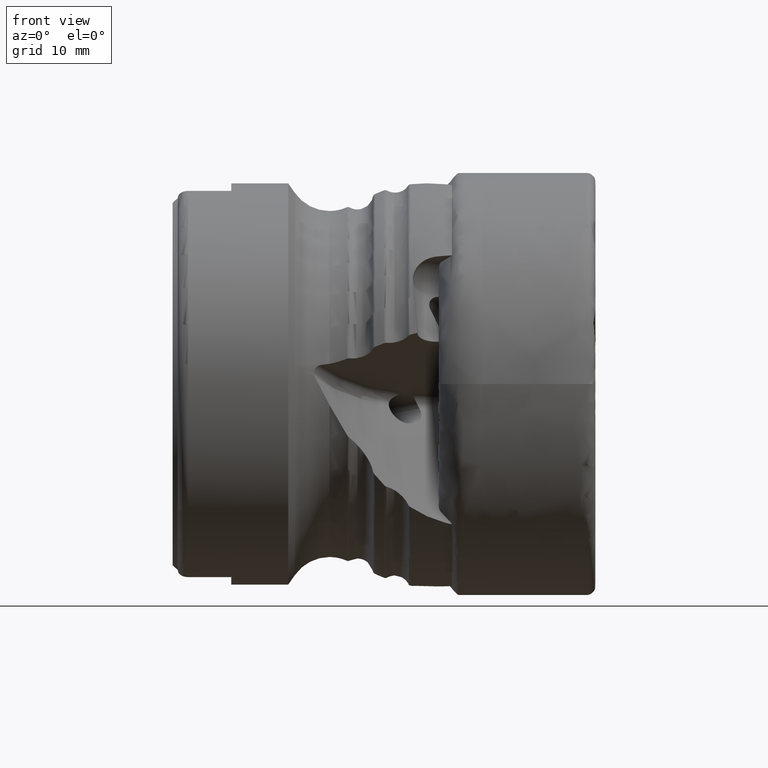
[diagram: clean part render]
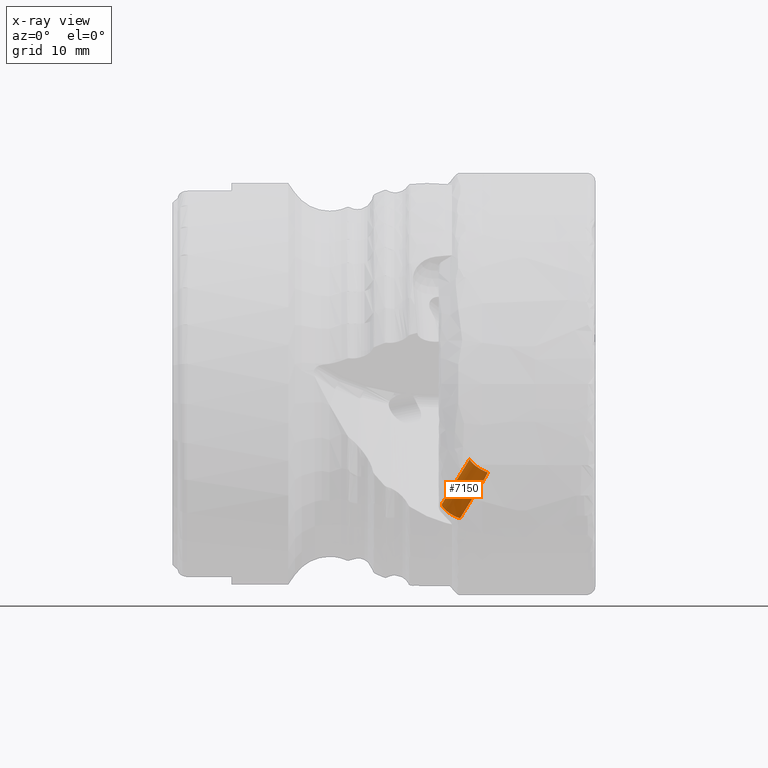
[diagram: x-ray — body ghosted, one internal face saturated and labeled with its STEP entity id]
A machine part, front view, then the same camera in x-ray: the body is ghosted and one INTERNAL B-rep face — a face not visible from any outside direction — is saturated and labeled: STEP entity #7150.
In plain terms, the highlighted cylindrical surface (edge-blend (fillet) strip) has radius 1.25 mm, axis along (-0.5057, 0.2785, -0.8165).
Its self-contained STEP definition (entity closure, byte-faithful):
#218 = CARTESIAN_POINT ( 'NONE',  ( -9.642172371613241900, -2.052300005719996300, -8.959324950347999900 ) ) ;
#690 = EDGE_CURVE ( 'NONE', #7364, #10941, #9029, .T. ) ;
#807 = EDGE_CURVE ( 'NONE', #5479, #6560, #8882, .T. ) ;
#1838 = CARTESIAN_POINT ( 'NONE',  ( -9.957127946149158900, -1.433126351175724000, -7.715148156586241000 ) ) ;
#2467 = CARTESIAN_POINT ( 'NONE',  ( -13.26944139812054700, 0.3913321303669727300, -13.06327220572874000 ) ) ;
#2474 = AXIS2_PLACEMENT_3D ( 'NONE', #2467, #11038, #7258 ) ;
#3349 = B_SPLINE_CURVE_WITH_KNOTS ( 'NONE', 3,
 ( #3754, #3671, #10437, #8694, #4827, #10480 ),
 .UNSPECIFIED., .F., .F.,
 ( 4, 2, 4 ),
 ( 2.602085213965210600E-018, 0.0003447808417564084300, 0.0006895616835128142700 ),
 .UNSPECIFIED. ) ;
#3467 = ORIENTED_EDGE ( 'NONE', *, *, #690, .F. ) ;
#3607 = DIRECTION ( 'NONE',  ( -0.5056967102246390200, 0.2785432796248390500, -0.8165074884187016900 ) ) ;
#3623 = DIRECTION ( 'NONE',  ( -0.8501534344395673700, 0.0000000000000000000, 0.5265350300887949900 ) ) ;
#3671 = CARTESIAN_POINT ( 'NONE',  ( -9.592598803239042100, -2.092707367843393800, -8.863807936376899100 ) ) ;
#3754 = CARTESIAN_POINT ( 'NONE',  ( -9.642172371613241900, -2.052300005719996300, -8.959324950347999900 ) ) ;
#4779 = CYLINDRICAL_SURFACE ( 'NONE', #2474, 1.250000000000001300 ) ;
#4813 = CARTESIAN_POINT ( 'NONE',  ( -11.97639707735323500, -0.7665835045600043500, -12.72820838058033700 ) ) ;
#4827 = CARTESIAN_POINT ( 'NONE',  ( -9.399302062577414000, -2.257074115898524800, -8.480448479903284200 ) ) ;
#5479 = VERTEX_POINT ( 'NONE', #5485 ) ;
#5485 = CARTESIAN_POINT ( 'NONE',  ( -11.97639707735323900, -0.7665835045600024600, -12.72820838058033900 ) ) ;
#5621 = AXIS2_PLACEMENT_3D ( 'NONE', #1838, #8590, #10620 ) ;
#5669 = CARTESIAN_POINT ( 'NONE',  ( -13.70001230338920600, 0.04315303083592299200, -11.38446905759436600 ) ) ;
#5936 = EDGE_CURVE ( 'NONE', #11556, #7364, #7221, .T. ) ;
#6289 = ORIENTED_EDGE ( 'NONE', *, *, #5936, .F. ) ;
#6342 = VECTOR ( 'NONE', #7690, 1000.000000000000100 ) ;
#6397 = CARTESIAN_POINT ( 'NONE',  ( -12.63732051033974600, 0.04315303083592288100, -12.04263784520536100 ) ) ;
#6560 = VERTEX_POINT ( 'NONE', #218 ) ;
#6657 = VECTOR ( 'NONE', #3607, 1000.000000000000000 ) ;
#6924 = CARTESIAN_POINT ( 'NONE',  ( -9.356569373408223800, -2.302084511735242900, -8.383535107314923400 ) ) ;
#7150 = ADVANCED_FACE ( 'NONE', ( #7508 ), #4779, .F. ) ;
#7221 = CIRCLE ( 'NONE', #5621, 1.249999999999999600 ) ;
#7258 = DIRECTION ( 'NONE',  ( -0.8501534344395673700, 0.0000000000000000000, 0.5265350300887949900 ) ) ;
#7364 = VERTEX_POINT ( 'NONE', #11837 ) ;
#7508 = FACE_OUTER_BOUND ( 'NONE', #7855, .T. ) ;
#7541 = CIRCLE ( 'NONE', #12299, 1.250000000000001300 ) ;
#7690 = DIRECTION ( 'NONE',  ( 0.5056967102246389100, -0.2785432796248383200, 0.8165074884187019100 ) ) ;
#7855 = EDGE_LOOP ( 'NONE', ( #3467, #6289, #11027, #11972, #12190 ) ) ;
#8590 = DIRECTION ( 'NONE',  ( -0.5056967102246390200, 0.2785432796248390500, -0.8165074884187016900 ) ) ;
#8694 = CARTESIAN_POINT ( 'NONE',  ( -9.444130060320297600, -2.213206664055551000, -8.576818361296533400 ) ) ;
#8882 = LINE ( 'NONE', #4813, #6342 ) ;
#9029 = LINE ( 'NONE', #9391, #6657 ) ;
#9369 = DIRECTION ( 'NONE',  ( -0.5056967102246390200, 0.2785432796248390500, -0.8165074884187016900 ) ) ;
#9391 = CARTESIAN_POINT ( 'NONE',  ( -14.33213319117000700, 0.3913321303669727300, -12.40510341811774500 ) ) ;
#10437 = CARTESIAN_POINT ( 'NONE',  ( -9.539511282561894800, -2.129860615064434400, -8.768622237437105200 ) ) ;
#10480 = CARTESIAN_POINT ( 'NONE',  ( -9.356569373408223800, -2.302084511735242900, -8.383535107314923400 ) ) ;
#10620 = DIRECTION ( 'NONE',  ( -0.8501534344395673700, 0.0000000000000000000, 0.5265350300887949900 ) ) ;
#10711 = EDGE_CURVE ( 'NONE', #5479, #10941, #7541, .T. ) ;
#10905 = EDGE_CURVE ( 'NONE', #6560, #11556, #3349, .T. ) ;
#10941 = VERTEX_POINT ( 'NONE', #5669 ) ;
#11027 = ORIENTED_EDGE ( 'NONE', *, *, #10905, .F. ) ;
#11038 = DIRECTION ( 'NONE',  ( -0.5056967102246390200, 0.2785432796248390500, -0.8165074884187016900 ) ) ;
#11556 = VERTEX_POINT ( 'NONE', #6924 ) ;
#11837 = CARTESIAN_POINT ( 'NONE',  ( -11.01981973919861900, -1.433126351175724600, -7.056979368975245100 ) ) ;
#11972 = ORIENTED_EDGE ( 'NONE', *, *, #807, .F. ) ;
#12190 = ORIENTED_EDGE ( 'NONE', *, *, #10711, .T. ) ;
#12299 = AXIS2_PLACEMENT_3D ( 'NONE', #6397, #9369, #3623 ) ;